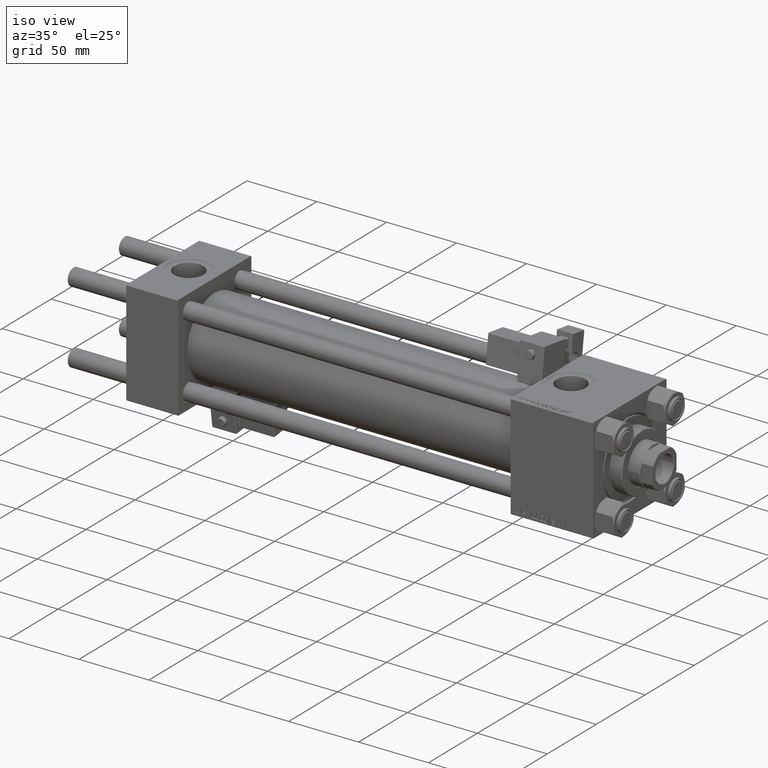
[diagram: clean part render]
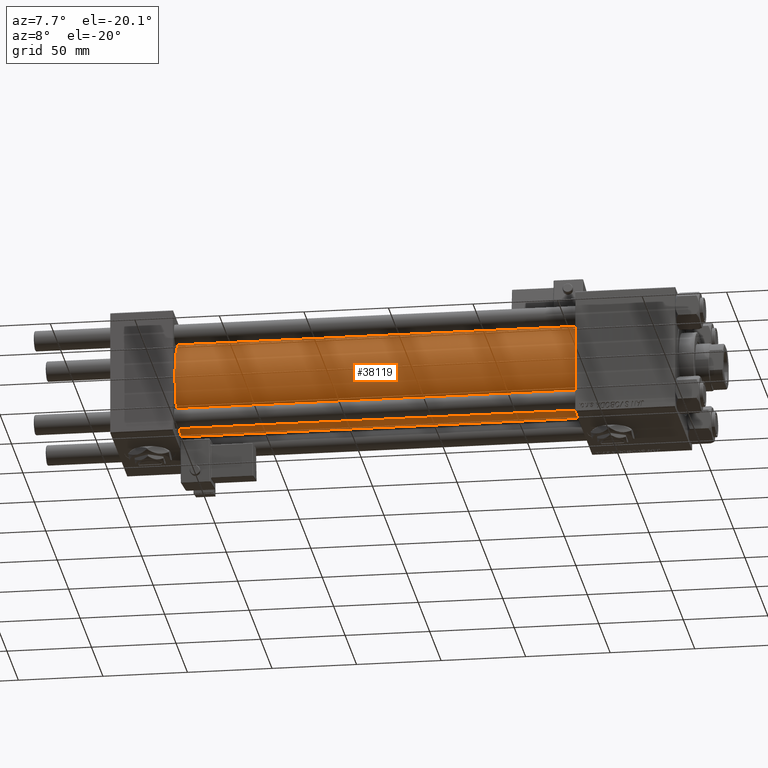
[diagram: tour spotlight — one face highlighted and labeled with its STEP entity id]
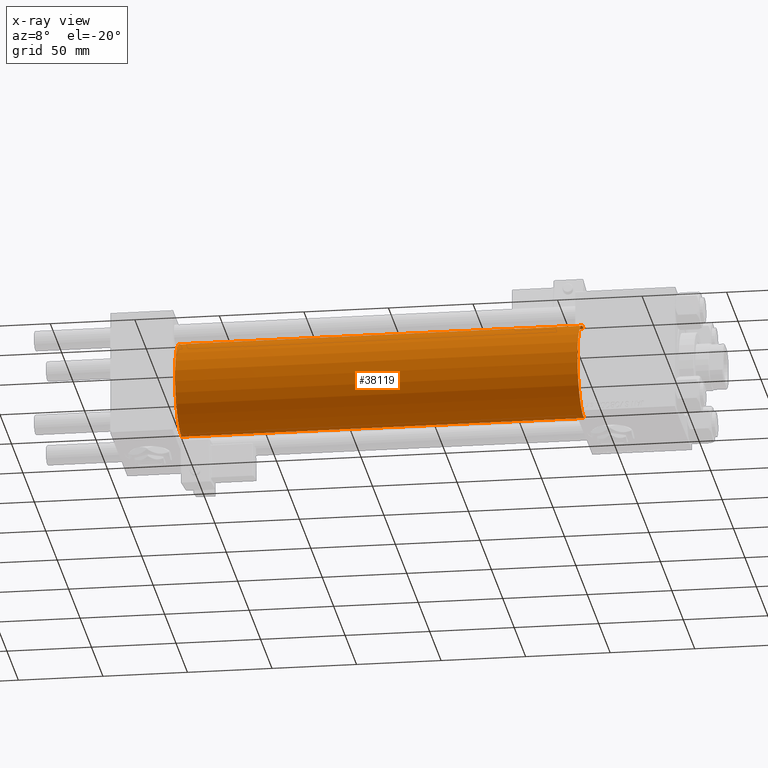
[diagram: x-ray of the same camera — body ghosted, this tour face saturated]
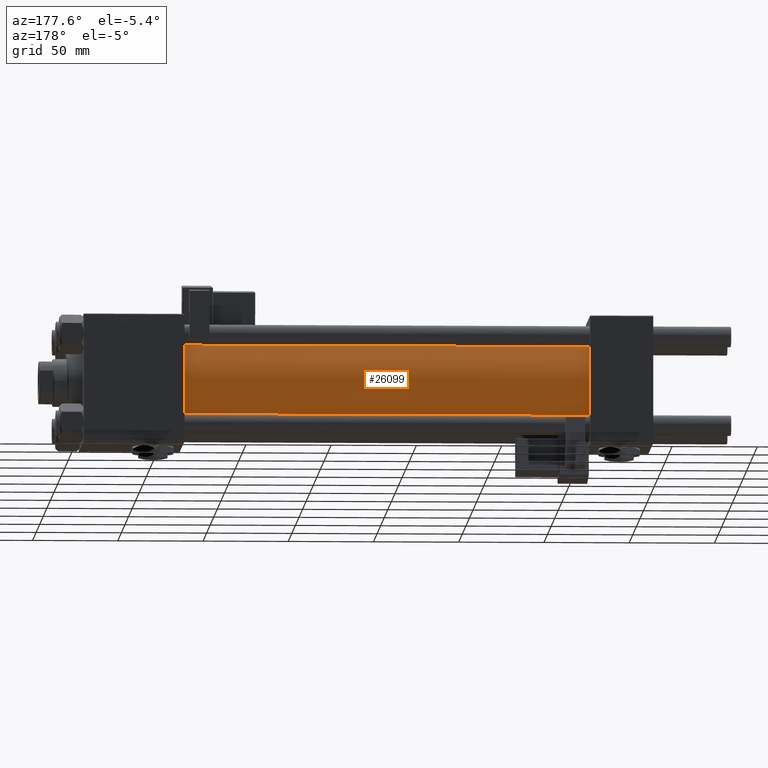
[diagram: tour spotlight — one face highlighted and labeled with its STEP entity id]
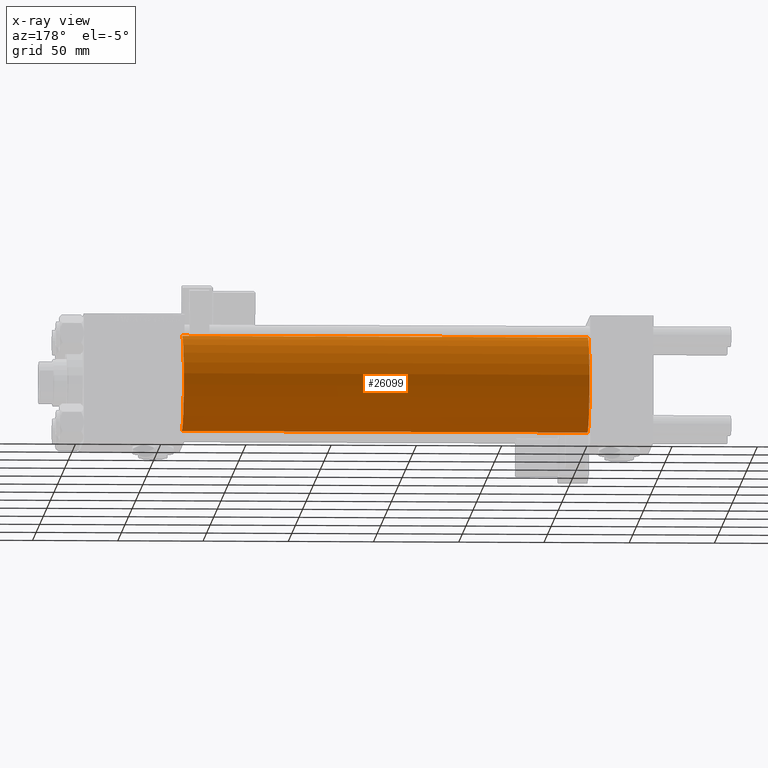
[diagram: x-ray of the same camera — body ghosted, this tour face saturated]
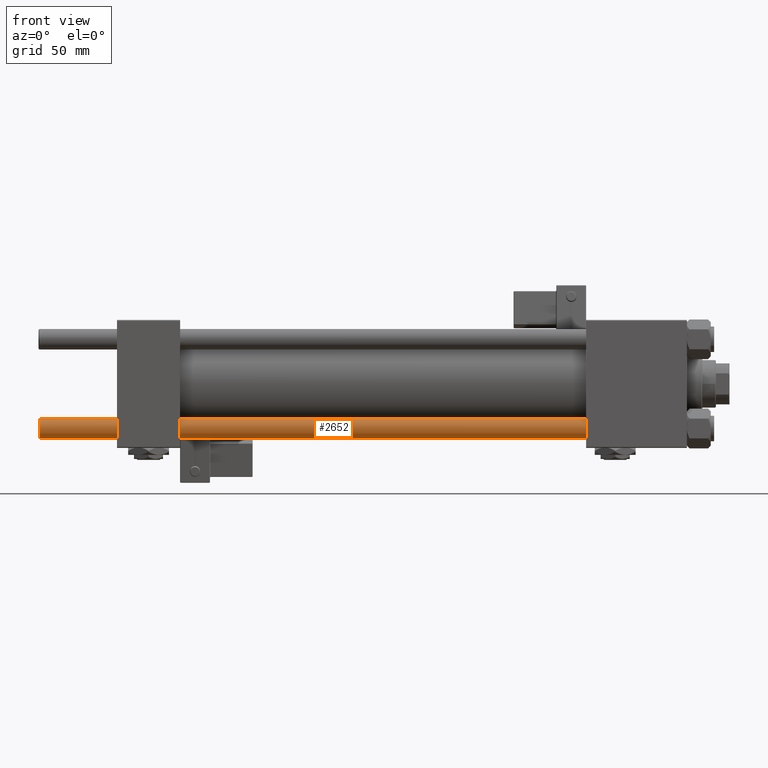
[diagram: tour spotlight — one face highlighted and labeled with its STEP entity id]
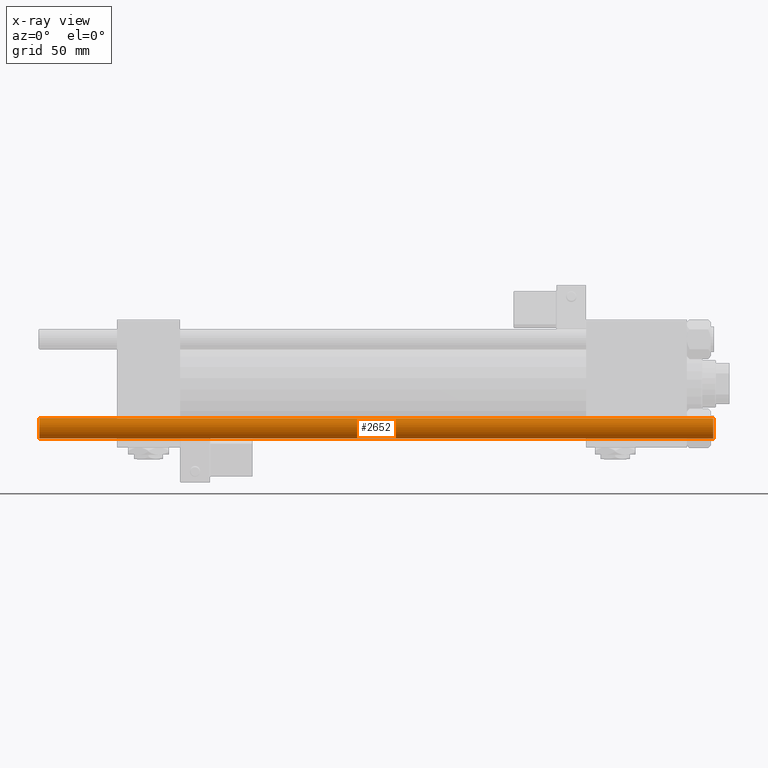
[diagram: x-ray of the same camera — body ghosted, this tour face saturated]
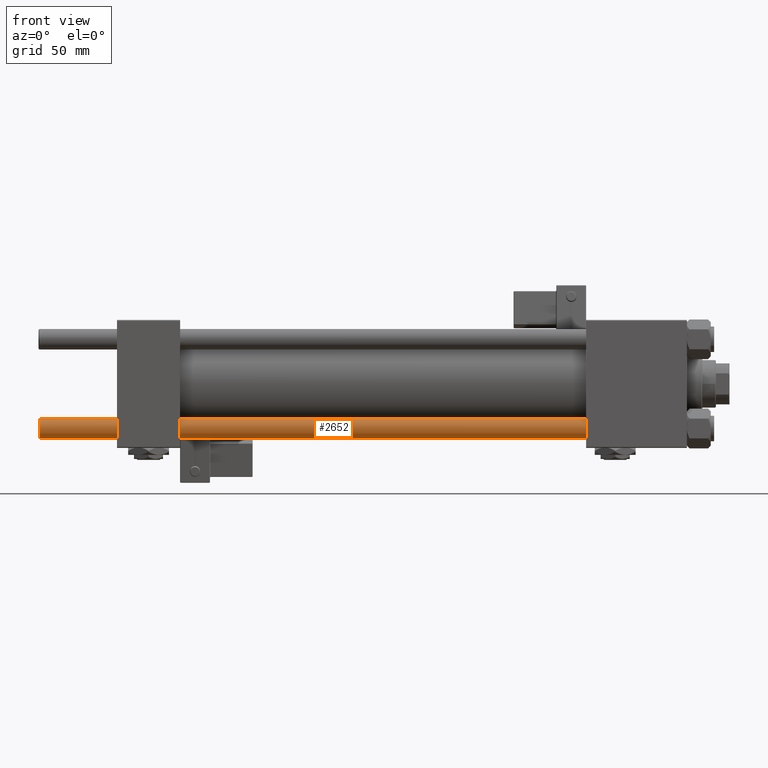
[diagram: tour spotlight — one face highlighted and labeled with its STEP entity id]
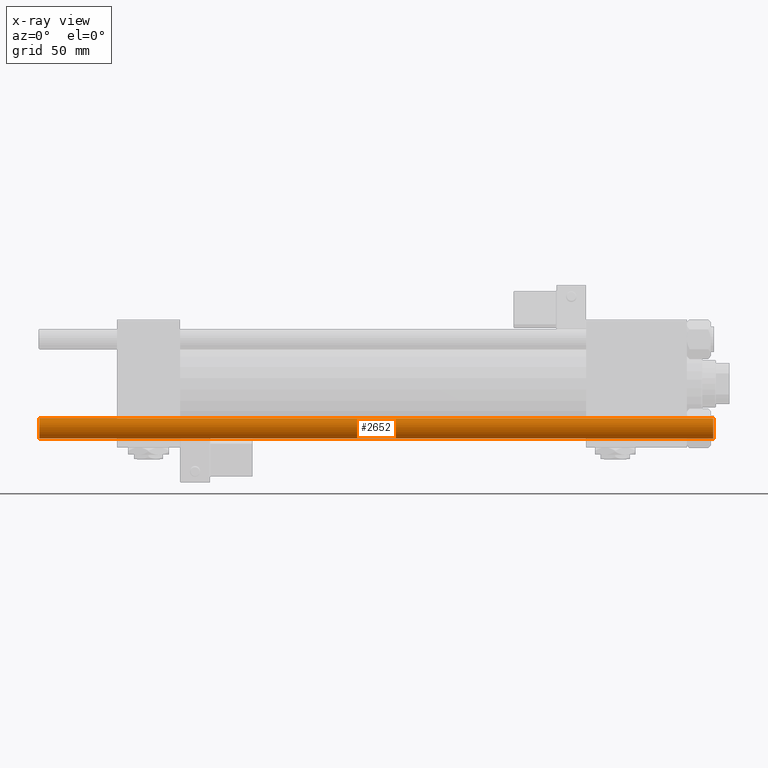
[diagram: x-ray of the same camera — body ghosted, this tour face saturated]
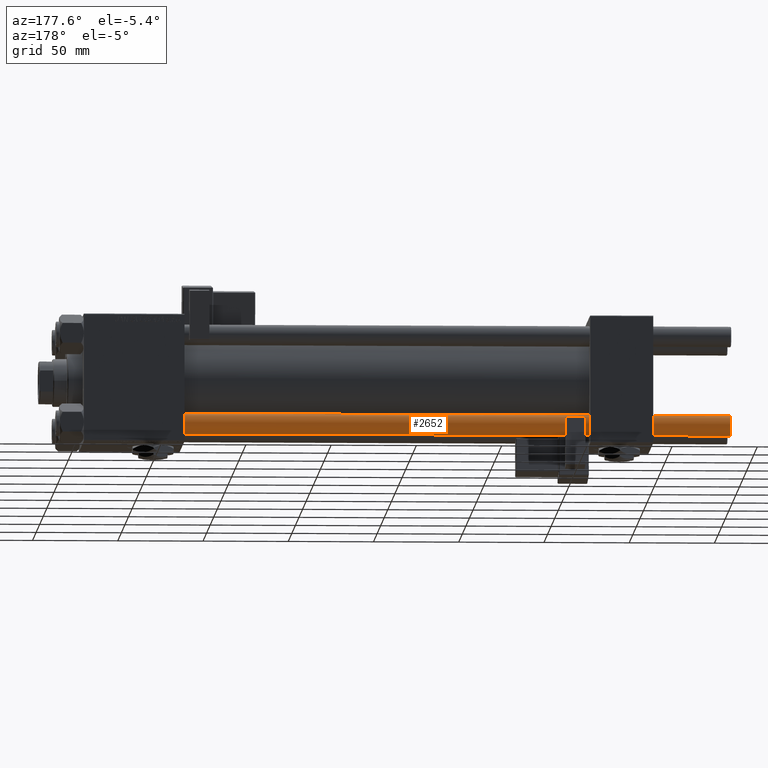
[diagram: tour spotlight — one face highlighted and labeled with its STEP entity id]
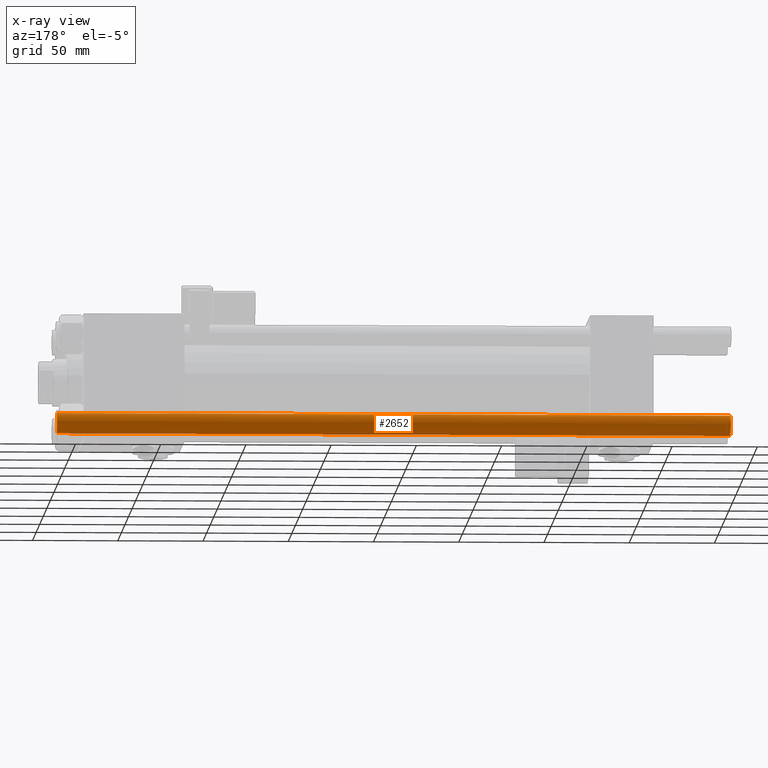
[diagram: x-ray of the same camera — body ghosted, this tour face saturated]
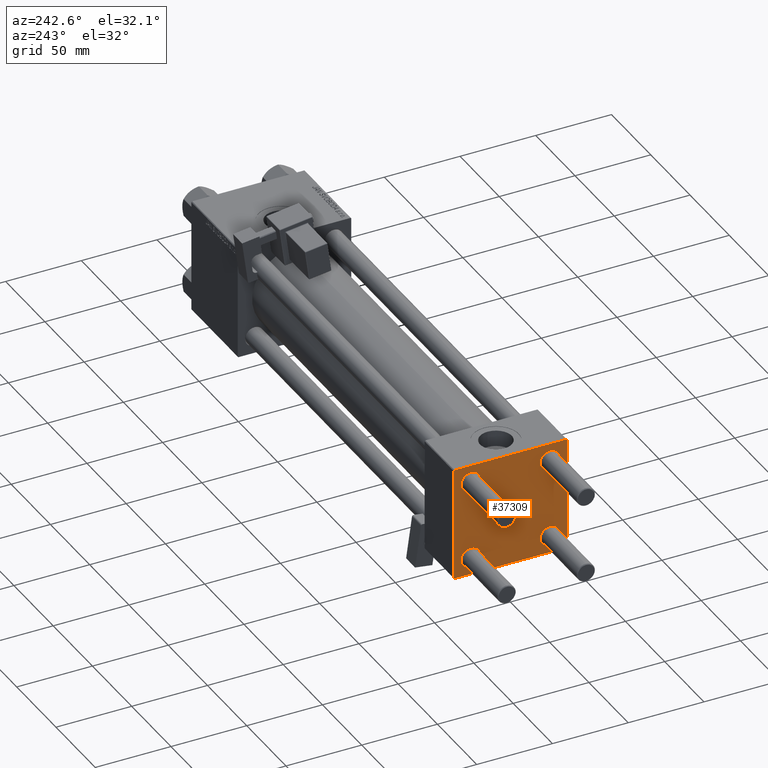
[diagram: tour spotlight — one face highlighted and labeled with its STEP entity id]
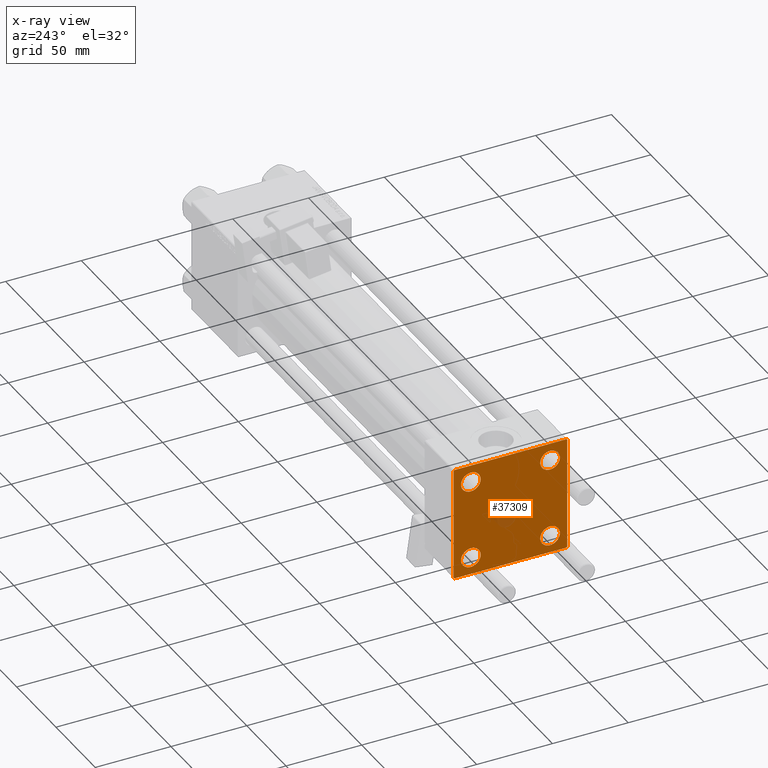
[diagram: x-ray of the same camera — body ghosted, this tour face saturated]
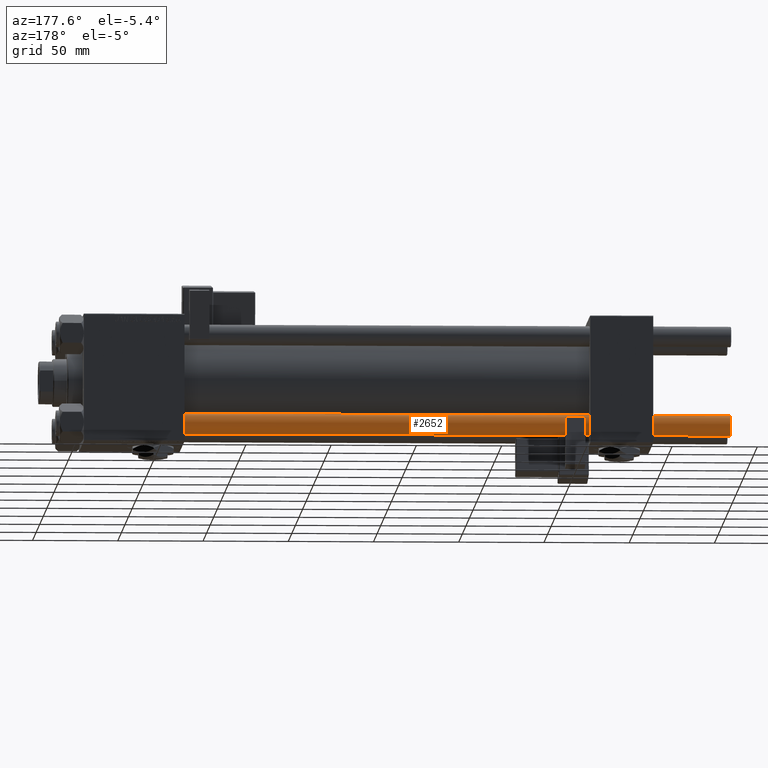
[diagram: tour spotlight — one face highlighted and labeled with its STEP entity id]
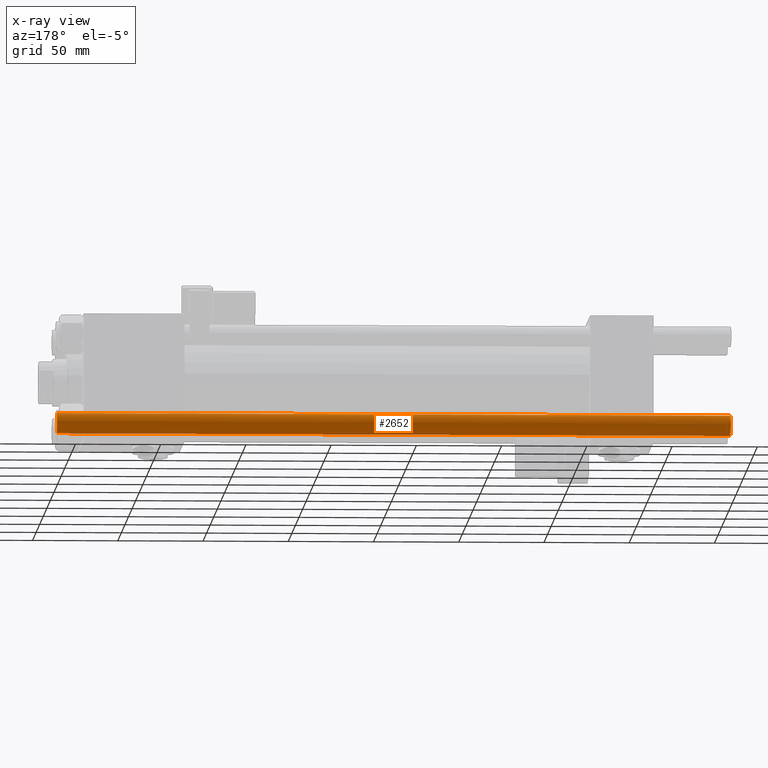
[diagram: x-ray of the same camera — body ghosted, this tour face saturated]
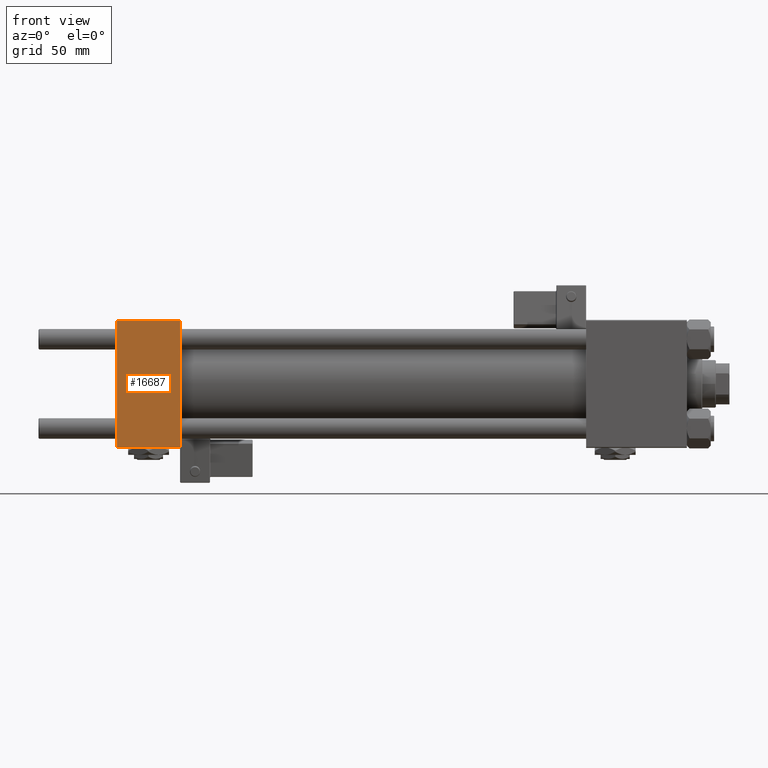
[diagram: tour spotlight — one face highlighted and labeled with its STEP entity id]
A machine part: a face-by-face anatomy tour. The part has 1387 B-rep faces; the first image is the clean iso view, then the 8 largest visible faces are spotlighted one at a time (largest first), each with its STEP entity span.

Face 1 — auxiliary view, entity #38119. An x-ray twin of the same camera follows (body ghosted, this face saturated) — the face is partly hidden behind the body. In plain terms, the highlighted cylindrical surface (partial cylindrical patch) has radius 28 mm, axis along (-1, -0, -0).
Definition (entity closure, byte-faithful):
#3312 = EDGE_CURVE ( 'NONE', #7573, #44421, #30639, .T. ) ;
#4209 = DIRECTION ( 'NONE',  ( 1.000000000000000000, -0.000000000000000000, 0.000000000000000000 ) ) ;
#5053 = DIRECTION ( 'NONE',  ( -1.000000000000000000, -0.000000000000000000, -0.000000000000000000 ) ) ;
#5757 = ORIENTED_EDGE ( 'NONE', *, *, #35624, .F. ) ;
#6972 = CYLINDRICAL_SURFACE ( 'NONE', #18963, 28.00000000000000000 ) ;
#7573 = VERTEX_POINT ( 'NONE', #10326 ) ;
#10326 = CARTESIAN_POINT ( 'NONE',  ( 274.9999999999999432, 0.000000000000000000, 28.00000000000000000 ) ) ;
#12146 = AXIS2_PLACEMENT_3D ( 'NONE', #41049, #49238, #24124 ) ;
#13717 = DIRECTION ( 'NONE',  ( -1.000000000000000000, -0.000000000000000000, -0.000000000000000000 ) ) ;
#16143 = VERTEX_POINT ( 'NONE', #43437 ) ;
#17894 = CIRCLE ( 'NONE', #46654, 28.00000000000000000 ) ;
#18007 = VERTEX_POINT ( 'NONE', #26898 ) ;
#18251 = ORIENTED_EDGE ( 'NONE', *, *, #3312, .T. ) ;
#18834 = ORIENTED_EDGE ( 'NONE', *, *, #42823, .F. ) ;
#18963 = AXIS2_PLACEMENT_3D ( 'NONE', #48715, #40253, #49507 ) ;
#19379 = CARTESIAN_POINT ( 'NONE',  ( 274.9999999999999432, 0.000000000000000000, 28.00000000000000000 ) ) ;
#21900 = EDGE_CURVE ( 'NONE', #44421, #18007, #17894, .T. ) ;
#24124 = DIRECTION ( 'NONE',  ( 0.000000000000000000, 0.000000000000000000, -1.000000000000000000 ) ) ;
#25159 = VECTOR ( 'NONE', #13717, 1000.000000000000000 ) ;
#26898 = CARTESIAN_POINT ( 'NONE',  ( 37.00000000000000711, 3.429011037612589276E-15, -28.00000000000000000 ) ) ;
#30458 = VECTOR ( 'NONE', #5053, 1000.000000000000000 ) ;
#30639 = LINE ( 'NONE', #19379, #25159 ) ;
#34918 = ORIENTED_EDGE ( 'NONE', *, *, #21900, .T. ) ;
#35624 = EDGE_CURVE ( 'NONE', #16143, #18007, #46803, .T. ) ;
#36957 = FACE_OUTER_BOUND ( 'NONE', #46791, .T. ) ;
#38119 = ADVANCED_FACE ( 'NONE', ( #36957 ), #6972, .T. ) ;
#40253 = DIRECTION ( 'NONE',  ( -1.000000000000000000, -0.000000000000000000, -0.000000000000000000 ) ) ;
#41049 = CARTESIAN_POINT ( 'NONE',  ( 274.9999999999999432, 0.000000000000000000, 0.000000000000000000 ) ) ;
#41587 = CARTESIAN_POINT ( 'NONE',  ( 37.00000000000000711, 0.000000000000000000, 0.000000000000000000 ) ) ;
#42812 = CARTESIAN_POINT ( 'NONE',  ( 37.00000000000000711, 0.000000000000000000, 28.00000000000000000 ) ) ;
#42823 = EDGE_CURVE ( 'NONE', #7573, #16143, #52237, .T. ) ;
#43437 = CARTESIAN_POINT ( 'NONE',  ( 274.9999999999999432, 3.429011037612589276E-15, -28.00000000000000000 ) ) ;
#44421 = VERTEX_POINT ( 'NONE', #42812 ) ;
#46654 = AXIS2_PLACEMENT_3D ( 'NONE', #41587, #4209, #50050 ) ;
#46791 = EDGE_LOOP ( 'NONE', ( #5757, #18834, #18251, #34918 ) ) ;
#46803 = LINE ( 'NONE', #50093, #30458 ) ;
#48715 = CARTESIAN_POINT ( 'NONE',  ( 274.9999999999999432, 0.000000000000000000, 0.000000000000000000 ) ) ;
#49238 = DIRECTION ( 'NONE',  ( 1.000000000000000000, 0.000000000000000000, 0.000000000000000000 ) ) ;
#49507 = DIRECTION ( 'NONE',  ( 0.000000000000000000, 0.000000000000000000, 1.000000000000000000 ) ) ;
#50050 = DIRECTION ( 'NONE',  ( 0.000000000000000000, 0.000000000000000000, 1.000000000000000000 ) ) ;
#50093 = CARTESIAN_POINT ( 'NONE',  ( 274.9999999999999432, 3.429011037612589276E-15, -28.00000000000000000 ) ) ;
#52237 = CIRCLE ( 'NONE', #12146, 28.00000000000000000 ) ;

Face 2 — auxiliary view, entity #26099. An x-ray twin of the same camera follows (body ghosted, this face saturated) — the face is partly hidden behind the body. In plain terms, the highlighted cylindrical surface (partial cylindrical patch) has radius 28 mm, axis along (-1, -0, -0).
Definition (entity closure, byte-faithful):
#817 = DIRECTION ( 'NONE',  ( 1.000000000000000000, 0.000000000000000000, 0.000000000000000000 ) ) ;
#1155 = CIRCLE ( 'NONE', #11636, 28.00000000000000000 ) ;
#1211 = ORIENTED_EDGE ( 'NONE', *, *, #16386, .F. ) ;
#2516 = CARTESIAN_POINT ( 'NONE',  ( 274.9999999999999432, 0.000000000000000000, 0.000000000000000000 ) ) ;
#3312 = EDGE_CURVE ( 'NONE', #7573, #44421, #30639, .T. ) ;
#3375 = DIRECTION ( 'NONE',  ( 0.000000000000000000, 0.000000000000000000, 1.000000000000000000 ) ) ;
#5053 = DIRECTION ( 'NONE',  ( -1.000000000000000000, -0.000000000000000000, -0.000000000000000000 ) ) ;
#5638 = CIRCLE ( 'NONE', #36990, 28.00000000000000000 ) ;
#7573 = VERTEX_POINT ( 'NONE', #10326 ) ;
#10326 = CARTESIAN_POINT ( 'NONE',  ( 274.9999999999999432, 0.000000000000000000, 28.00000000000000000 ) ) ;
#11636 = AXIS2_PLACEMENT_3D ( 'NONE', #44322, #48686, #3375 ) ;
#13185 = EDGE_CURVE ( 'NONE', #18007, #44421, #1155, .T. ) ;
#13717 = DIRECTION ( 'NONE',  ( -1.000000000000000000, -0.000000000000000000, -0.000000000000000000 ) ) ;
#14512 = ORIENTED_EDGE ( 'NONE', *, *, #13185, .T. ) ;
#15130 = ORIENTED_EDGE ( 'NONE', *, *, #3312, .F. ) ;
#15605 = DIRECTION ( 'NONE',  ( 0.000000000000000000, 0.000000000000000000, 1.000000000000000000 ) ) ;
#16143 = VERTEX_POINT ( 'NONE', #43437 ) ;
#16386 = EDGE_CURVE ( 'NONE', #16143, #7573, #5638, .T. ) ;
#18007 = VERTEX_POINT ( 'NONE', #26898 ) ;
#19379 = CARTESIAN_POINT ( 'NONE',  ( 274.9999999999999432, 0.000000000000000000, 28.00000000000000000 ) ) ;
#25159 = VECTOR ( 'NONE', #13717, 1000.000000000000000 ) ;
#26099 = ADVANCED_FACE ( 'NONE', ( #44266 ), #40434, .T. ) ;
#26898 = CARTESIAN_POINT ( 'NONE',  ( 37.00000000000000711, 3.429011037612589276E-15, -28.00000000000000000 ) ) ;
#28409 = DIRECTION ( 'NONE',  ( -1.000000000000000000, -0.000000000000000000, -0.000000000000000000 ) ) ;
#30458 = VECTOR ( 'NONE', #5053, 1000.000000000000000 ) ;
#30639 = LINE ( 'NONE', #19379, #25159 ) ;
#33297 = DIRECTION ( 'NONE',  ( 0.000000000000000000, 0.000000000000000000, -1.000000000000000000 ) ) ;
#35624 = EDGE_CURVE ( 'NONE', #16143, #18007, #46803, .T. ) ;
#36990 = AXIS2_PLACEMENT_3D ( 'NONE', #46399, #817, #33297 ) ;
#40434 = CYLINDRICAL_SURFACE ( 'NONE', #45950, 28.00000000000000000 ) ;
#40704 = ORIENTED_EDGE ( 'NONE', *, *, #35624, .T. ) ;
#42812 = CARTESIAN_POINT ( 'NONE',  ( 37.00000000000000711, 0.000000000000000000, 28.00000000000000000 ) ) ;
#43437 = CARTESIAN_POINT ( 'NONE',  ( 274.9999999999999432, 3.429011037612589276E-15, -28.00000000000000000 ) ) ;
#44266 = FACE_OUTER_BOUND ( 'NONE', #48033, .T. ) ;
#44322 = CARTESIAN_POINT ( 'NONE',  ( 37.00000000000000711, 0.000000000000000000, 0.000000000000000000 ) ) ;
#44421 = VERTEX_POINT ( 'NONE', #42812 ) ;
#45950 = AXIS2_PLACEMENT_3D ( 'NONE', #2516, #28409, #15605 ) ;
#46399 = CARTESIAN_POINT ( 'NONE',  ( 274.9999999999999432, 0.000000000000000000, 0.000000000000000000 ) ) ;
#46803 = LINE ( 'NONE', #50093, #30458 ) ;
#48033 = EDGE_LOOP ( 'NONE', ( #1211, #40704, #14512, #15130 ) ) ;
#48686 = DIRECTION ( 'NONE',  ( 1.000000000000000000, -0.000000000000000000, 0.000000000000000000 ) ) ;
#50093 = CARTESIAN_POINT ( 'NONE',  ( 274.9999999999999432, 3.429011037612589276E-15, -28.00000000000000000 ) ) ;

Face 3 — front view, entity #2652. An x-ray twin of the same camera follows (body ghosted, this face saturated) — the face is partly hidden behind the body. In plain terms, the highlighted cylindrical surface (edge-blend (fillet) strip) has radius 6 mm, axis along (1, -0, 0).
Definition (entity closure, byte-faithful):
#973 = DIRECTION ( 'NONE',  ( -0.000000000000000000, -0.000000000000000000, -1.000000000000000000 ) ) ;
#2652 = ADVANCED_FACE ( 'NONE', ( #20102 ), #16009, .T. ) ;
#2766 = EDGE_CURVE ( 'NONE', #43515, #14283, #17342, .T. ) ;
#3617 = CARTESIAN_POINT ( 'NONE',  ( 0.000000000000000000, 0.000000000000000000, 0.5000000000001114664 ) ) ;
#4401 = AXIS2_PLACEMENT_3D ( 'NONE', #46739, #24918, #12643 ) ;
#4823 = EDGE_LOOP ( 'NONE', ( #44488, #48795, #37979, #49357 ) ) ;
#8742 = CARTESIAN_POINT ( 'NONE',  ( 6.000000000000000888, 7.347880794884120722E-16, 395.5000000000000568 ) ) ;
#11187 = AXIS2_PLACEMENT_3D ( 'NONE', #49835, #37008, #49039 ) ;
#11971 = VERTEX_POINT ( 'NONE', #44887 ) ;
#12643 = DIRECTION ( 'NONE',  ( 1.000000000000000000, 0.000000000000000000, 0.000000000000000000 ) ) ;
#13555 = EDGE_CURVE ( 'NONE', #16394, #11971, #42905, .T. ) ;
#14283 = VERTEX_POINT ( 'NONE', #21629 ) ;
#16009 = CYLINDRICAL_SURFACE ( 'NONE', #11187, 6.000000000000000888 ) ;
#16394 = VERTEX_POINT ( 'NONE', #8742 ) ;
#17342 = LINE ( 'NONE', #30148, #29485 ) ;
#18353 = CARTESIAN_POINT ( 'NONE',  ( 6.000000000000000888, 7.347880794884120722E-16, 396.0000000000000000 ) ) ;
#20102 = FACE_OUTER_BOUND ( 'NONE', #4823, .T. ) ;
#21629 = CARTESIAN_POINT ( 'NONE',  ( -6.000000000000000888, 0.000000000000000000, 0.5000000000001114664 ) ) ;
#24918 = DIRECTION ( 'NONE',  ( 0.000000000000000000, 0.000000000000000000, -1.000000000000000000 ) ) ;
#27916 = CIRCLE ( 'NONE', #4401, 6.000000000000000888 ) ;
#29485 = VECTOR ( 'NONE', #973, 1000.000000000000000 ) ;
#30148 = CARTESIAN_POINT ( 'NONE',  ( -6.000000000000000888, 0.000000000000000000, 396.0000000000000000 ) ) ;
#30800 = VECTOR ( 'NONE', #34992, 1000.000000000000000 ) ;
#34992 = DIRECTION ( 'NONE',  ( -0.000000000000000000, -0.000000000000000000, -1.000000000000000000 ) ) ;
#37008 = DIRECTION ( 'NONE',  ( -0.000000000000000000, -0.000000000000000000, -1.000000000000000000 ) ) ;
#37163 = DIRECTION ( 'NONE',  ( -0.000000000000000000, -0.000000000000000000, 1.000000000000000000 ) ) ;
#37979 = ORIENTED_EDGE ( 'NONE', *, *, #52931, .T. ) ;
#38540 = AXIS2_PLACEMENT_3D ( 'NONE', #3617, #37163, #53297 ) ;
#42056 = CIRCLE ( 'NONE', #38540, 6.000000000000000888 ) ;
#42905 = LINE ( 'NONE', #18353, #30800 ) ;
#43515 = VERTEX_POINT ( 'NONE', #53082 ) ;
#44488 = ORIENTED_EDGE ( 'NONE', *, *, #47617, .T. ) ;
#44887 = CARTESIAN_POINT ( 'NONE',  ( 6.000000000000000888, 7.347880794884120722E-16, 0.5000000000001114664 ) ) ;
#46739 = CARTESIAN_POINT ( 'NONE',  ( 0.000000000000000000, 0.000000000000000000, 395.5000000000000568 ) ) ;
#47617 = EDGE_CURVE ( 'NONE', #43515, #16394, #27916, .T. ) ;
#48795 = ORIENTED_EDGE ( 'NONE', *, *, #13555, .T. ) ;
#49039 = DIRECTION ( 'NONE',  ( -1.000000000000000000, 0.000000000000000000, 0.000000000000000000 ) ) ;
#49357 = ORIENTED_EDGE ( 'NONE', *, *, #2766, .F. ) ;
#49835 = CARTESIAN_POINT ( 'NONE',  ( 0.000000000000000000, 0.000000000000000000, 396.0000000000000000 ) ) ;
#52931 = EDGE_CURVE ( 'NONE', #11971, #14283, #42056, .T. ) ;
#53082 = CARTESIAN_POINT ( 'NONE',  ( -6.000000000000000888, 0.000000000000000000, 395.5000000000000568 ) ) ;
#53297 = DIRECTION ( 'NONE',  ( 1.000000000000000000, 0.000000000000000000, 0.000000000000000000 ) ) ;

Face 4 — front view, entity #2652. An x-ray twin of the same camera follows (body ghosted, this face saturated) — the face is partly hidden behind the body. In plain terms, the highlighted cylindrical surface (edge-blend (fillet) strip) has radius 6 mm, axis along (-1, 0, 0).
Definition (entity closure, byte-faithful):
#973 = DIRECTION ( 'NONE',  ( -0.000000000000000000, -0.000000000000000000, -1.000000000000000000 ) ) ;
#2652 = ADVANCED_FACE ( 'NONE', ( #20102 ), #16009, .T. ) ;
#2766 = EDGE_CURVE ( 'NONE', #43515, #14283, #17342, .T. ) ;
#3617 = CARTESIAN_POINT ( 'NONE',  ( 0.000000000000000000, 0.000000000000000000, 0.5000000000001114664 ) ) ;
#4401 = AXIS2_PLACEMENT_3D ( 'NONE', #46739, #24918, #12643 ) ;
#4823 = EDGE_LOOP ( 'NONE', ( #44488, #48795, #37979, #49357 ) ) ;
#8742 = CARTESIAN_POINT ( 'NONE',  ( 6.000000000000000888, 7.347880794884120722E-16, 395.5000000000000568 ) ) ;
#11187 = AXIS2_PLACEMENT_3D ( 'NONE', #49835, #37008, #49039 ) ;
#11971 = VERTEX_POINT ( 'NONE', #44887 ) ;
#12643 = DIRECTION ( 'NONE',  ( 1.000000000000000000, 0.000000000000000000, 0.000000000000000000 ) ) ;
#13555 = EDGE_CURVE ( 'NONE', #16394, #11971, #42905, .T. ) ;
#14283 = VERTEX_POINT ( 'NONE', #21629 ) ;
#16009 = CYLINDRICAL_SURFACE ( 'NONE', #11187, 6.000000000000000888 ) ;
#16394 = VERTEX_POINT ( 'NONE', #8742 ) ;
#17342 = LINE ( 'NONE', #30148, #29485 ) ;
#18353 = CARTESIAN_POINT ( 'NONE',  ( 6.000000000000000888, 7.347880794884120722E-16, 396.0000000000000000 ) ) ;
#20102 = FACE_OUTER_BOUND ( 'NONE', #4823, .T. ) ;
#21629 = CARTESIAN_POINT ( 'NONE',  ( -6.000000000000000888, 0.000000000000000000, 0.5000000000001114664 ) ) ;
#24918 = DIRECTION ( 'NONE',  ( 0.000000000000000000, 0.000000000000000000, -1.000000000000000000 ) ) ;
#27916 = CIRCLE ( 'NONE', #4401, 6.000000000000000888 ) ;
#29485 = VECTOR ( 'NONE', #973, 1000.000000000000000 ) ;
#30148 = CARTESIAN_POINT ( 'NONE',  ( -6.000000000000000888, 0.000000000000000000, 396.0000000000000000 ) ) ;
#30800 = VECTOR ( 'NONE', #34992, 1000.000000000000000 ) ;
#34992 = DIRECTION ( 'NONE',  ( -0.000000000000000000, -0.000000000000000000, -1.000000000000000000 ) ) ;
#37008 = DIRECTION ( 'NONE',  ( -0.000000000000000000, -0.000000000000000000, -1.000000000000000000 ) ) ;
#37163 = DIRECTION ( 'NONE',  ( -0.000000000000000000, -0.000000000000000000, 1.000000000000000000 ) ) ;
#37979 = ORIENTED_EDGE ( 'NONE', *, *, #52931, .T. ) ;
#38540 = AXIS2_PLACEMENT_3D ( 'NONE', #3617, #37163, #53297 ) ;
#42056 = CIRCLE ( 'NONE', #38540, 6.000000000000000888 ) ;
#42905 = LINE ( 'NONE', #18353, #30800 ) ;
#43515 = VERTEX_POINT ( 'NONE', #53082 ) ;
#44488 = ORIENTED_EDGE ( 'NONE', *, *, #47617, .T. ) ;
#44887 = CARTESIAN_POINT ( 'NONE',  ( 6.000000000000000888, 7.347880794884120722E-16, 0.5000000000001114664 ) ) ;
#46739 = CARTESIAN_POINT ( 'NONE',  ( 0.000000000000000000, 0.000000000000000000, 395.5000000000000568 ) ) ;
#47617 = EDGE_CURVE ( 'NONE', #43515, #16394, #27916, .T. ) ;
#48795 = ORIENTED_EDGE ( 'NONE', *, *, #13555, .T. ) ;
#49039 = DIRECTION ( 'NONE',  ( -1.000000000000000000, 0.000000000000000000, 0.000000000000000000 ) ) ;
#49357 = ORIENTED_EDGE ( 'NONE', *, *, #2766, .F. ) ;
#49835 = CARTESIAN_POINT ( 'NONE',  ( 0.000000000000000000, 0.000000000000000000, 396.0000000000000000 ) ) ;
#52931 = EDGE_CURVE ( 'NONE', #11971, #14283, #42056, .T. ) ;
#53082 = CARTESIAN_POINT ( 'NONE',  ( -6.000000000000000888, 0.000000000000000000, 395.5000000000000568 ) ) ;
#53297 = DIRECTION ( 'NONE',  ( 1.000000000000000000, 0.000000000000000000, 0.000000000000000000 ) ) ;

Face 5 — auxiliary view, entity #2652. An x-ray twin of the same camera follows (body ghosted, this face saturated) — the face is partly hidden behind the body. In plain terms, the highlighted cylindrical surface (edge-blend (fillet) strip) has radius 6 mm, axis along (-1, -0, -0).
Definition (entity closure, byte-faithful):
#973 = DIRECTION ( 'NONE',  ( -0.000000000000000000, -0.000000000000000000, -1.000000000000000000 ) ) ;
#2652 = ADVANCED_FACE ( 'NONE', ( #20102 ), #16009, .T. ) ;
#2766 = EDGE_CURVE ( 'NONE', #43515, #14283, #17342, .T. ) ;
#3617 = CARTESIAN_POINT ( 'NONE',  ( 0.000000000000000000, 0.000000000000000000, 0.5000000000001114664 ) ) ;
#4401 = AXIS2_PLACEMENT_3D ( 'NONE', #46739, #24918, #12643 ) ;
#4823 = EDGE_LOOP ( 'NONE', ( #44488, #48795, #37979, #49357 ) ) ;
#8742 = CARTESIAN_POINT ( 'NONE',  ( 6.000000000000000888, 7.347880794884120722E-16, 395.5000000000000568 ) ) ;
#11187 = AXIS2_PLACEMENT_3D ( 'NONE', #49835, #37008, #49039 ) ;
#11971 = VERTEX_POINT ( 'NONE', #44887 ) ;
#12643 = DIRECTION ( 'NONE',  ( 1.000000000000000000, 0.000000000000000000, 0.000000000000000000 ) ) ;
#13555 = EDGE_CURVE ( 'NONE', #16394, #11971, #42905, .T. ) ;
#14283 = VERTEX_POINT ( 'NONE', #21629 ) ;
#16009 = CYLINDRICAL_SURFACE ( 'NONE', #11187, 6.000000000000000888 ) ;
#16394 = VERTEX_POINT ( 'NONE', #8742 ) ;
#17342 = LINE ( 'NONE', #30148, #29485 ) ;
#18353 = CARTESIAN_POINT ( 'NONE',  ( 6.000000000000000888, 7.347880794884120722E-16, 396.0000000000000000 ) ) ;
#20102 = FACE_OUTER_BOUND ( 'NONE', #4823, .T. ) ;
#21629 = CARTESIAN_POINT ( 'NONE',  ( -6.000000000000000888, 0.000000000000000000, 0.5000000000001114664 ) ) ;
#24918 = DIRECTION ( 'NONE',  ( 0.000000000000000000, 0.000000000000000000, -1.000000000000000000 ) ) ;
#27916 = CIRCLE ( 'NONE', #4401, 6.000000000000000888 ) ;
#29485 = VECTOR ( 'NONE', #973, 1000.000000000000000 ) ;
#30148 = CARTESIAN_POINT ( 'NONE',  ( -6.000000000000000888, 0.000000000000000000, 396.0000000000000000 ) ) ;
#30800 = VECTOR ( 'NONE', #34992, 1000.000000000000000 ) ;
#34992 = DIRECTION ( 'NONE',  ( -0.000000000000000000, -0.000000000000000000, -1.000000000000000000 ) ) ;
#37008 = DIRECTION ( 'NONE',  ( -0.000000000000000000, -0.000000000000000000, -1.000000000000000000 ) ) ;
#37163 = DIRECTION ( 'NONE',  ( -0.000000000000000000, -0.000000000000000000, 1.000000000000000000 ) ) ;
#37979 = ORIENTED_EDGE ( 'NONE', *, *, #52931, .T. ) ;
#38540 = AXIS2_PLACEMENT_3D ( 'NONE', #3617, #37163, #53297 ) ;
#42056 = CIRCLE ( 'NONE', #38540, 6.000000000000000888 ) ;
#42905 = LINE ( 'NONE', #18353, #30800 ) ;
#43515 = VERTEX_POINT ( 'NONE', #53082 ) ;
#44488 = ORIENTED_EDGE ( 'NONE', *, *, #47617, .T. ) ;
#44887 = CARTESIAN_POINT ( 'NONE',  ( 6.000000000000000888, 7.347880794884120722E-16, 0.5000000000001114664 ) ) ;
#46739 = CARTESIAN_POINT ( 'NONE',  ( 0.000000000000000000, 0.000000000000000000, 395.5000000000000568 ) ) ;
#47617 = EDGE_CURVE ( 'NONE', #43515, #16394, #27916, .T. ) ;
#48795 = ORIENTED_EDGE ( 'NONE', *, *, #13555, .T. ) ;
#49039 = DIRECTION ( 'NONE',  ( -1.000000000000000000, 0.000000000000000000, 0.000000000000000000 ) ) ;
#49357 = ORIENTED_EDGE ( 'NONE', *, *, #2766, .F. ) ;
#49835 = CARTESIAN_POINT ( 'NONE',  ( 0.000000000000000000, 0.000000000000000000, 396.0000000000000000 ) ) ;
#52931 = EDGE_CURVE ( 'NONE', #11971, #14283, #42056, .T. ) ;
#53082 = CARTESIAN_POINT ( 'NONE',  ( -6.000000000000000888, 0.000000000000000000, 395.5000000000000568 ) ) ;
#53297 = DIRECTION ( 'NONE',  ( 1.000000000000000000, 0.000000000000000000, 0.000000000000000000 ) ) ;

Face 6 — auxiliary view, entity #37309. An x-ray twin of the same camera follows (body ghosted, this face saturated) — the face is partly hidden behind the body. In plain terms, the highlighted planar face has unit normal (-1, 0, 0).
Definition (entity closure, byte-faithful):
#675 = AXIS2_PLACEMENT_3D ( 'NONE', #11108, #32113, #52055 ) ;
#1284 = ORIENTED_EDGE ( 'NONE', *, *, #3921, .T. ) ;
#1578 = CARTESIAN_POINT ( 'NONE',  ( 0.000000000000000000, 26.14999999999999858, 19.64999999999998437 ) ) ;
#1746 = VECTOR ( 'NONE', #37673, 1000.000000000000114 ) ;
#1970 = ORIENTED_EDGE ( 'NONE', *, *, #41216, .T. ) ;
#2071 = DIRECTION ( 'NONE',  ( 0.000000000000000000, 0.000000000000000000, 1.000000000000000000 ) ) ;
#2398 = FACE_BOUND ( 'NONE', #6027, .T. ) ;
#2502 = CIRCLE ( 'NONE', #32997, 6.500000000000015987 ) ;
#2588 = EDGE_CURVE ( 'NONE', #36169, #28673, #25980, .T. ) ;
#2677 = DIRECTION ( 'NONE',  ( -1.000000000000000000, 0.000000000000000000, -0.000000000000000000 ) ) ;
#3633 = EDGE_CURVE ( 'NONE', #33813, #3863, #2502, .T. ) ;
#3863 = VERTEX_POINT ( 'NONE', #35887 ) ;
#3921 = EDGE_CURVE ( 'NONE', #3863, #33813, #51352, .T. ) ;
#4171 = VERTEX_POINT ( 'NONE', #16148 ) ;
#5310 = CARTESIAN_POINT ( 'NONE',  ( 0.000000000000000000, -26.14999999999999147, -26.15000000000000924 ) ) ;
#5516 = CARTESIAN_POINT ( 'NONE',  ( 0.000000000000000000, -26.14999999999999147, 32.65000000000003411 ) ) ;
#6027 = EDGE_LOOP ( 'NONE', ( #1284, #31938 ) ) ;
#6932 = ORIENTED_EDGE ( 'NONE', *, *, #17534, .T. ) ;
#7429 = ORIENTED_EDGE ( 'NONE', *, *, #22503, .T. ) ;
#8532 = CARTESIAN_POINT ( 'NONE',  ( 0.000000000000000000, -37.24999999999975842, -37.25000000000027001 ) ) ;
#8998 = CARTESIAN_POINT ( 'NONE',  ( 0.000000000000000000, 37.49999999999999289, -37.50000000000000000 ) ) ;
#9067 = VECTOR ( 'NONE', #32780, 1000.000000000000000 ) ;
#9197 = VERTEX_POINT ( 'NONE', #23286 ) ;
#9452 = CARTESIAN_POINT ( 'NONE',  ( 0.000000000000000000, 26.14999999999999858, 32.65000000000002700 ) ) ;
#11108 = CARTESIAN_POINT ( 'NONE',  ( 0.000000000000000000, -26.14999999999999147, -26.15000000000000924 ) ) ;
#11368 = DIRECTION ( 'NONE',  ( 0.000000000000000000, 0.000000000000000000, 1.000000000000000000 ) ) ;
#11886 = CARTESIAN_POINT ( 'NONE',  ( 0.000000000000000000, 37.49999999999999289, 37.00000000000000000 ) ) ;
#12148 = ORIENTED_EDGE ( 'NONE', *, *, #47124, .T. ) ;
#12540 = DIRECTION ( 'NONE',  ( 0.000000000000000000, 0.000000000000000000, -1.000000000000000000 ) ) ;
#12572 = AXIS2_PLACEMENT_3D ( 'NONE', #5310, #22485, #29595 ) ;
#12833 = CARTESIAN_POINT ( 'NONE',  ( 0.000000000000000000, 37.24999999999999289, 37.24999999999999289 ) ) ;
#12850 = CARTESIAN_POINT ( 'NONE',  ( 0.000000000000000000, -37.50000000000000711, 37.49999999999999289 ) ) ;
#12910 = DIRECTION ( 'NONE',  ( -0.000000000000000000, -0.7071067811865474617, -0.7071067811865474617 ) ) ;
#13022 = CARTESIAN_POINT ( 'NONE',  ( 0.000000000000000000, -26.14999999999999147, 26.15000000000000924 ) ) ;
#13078 = VECTOR ( 'NONE', #26321, 1000.000000000000000 ) ;
#13081 = ORIENTED_EDGE ( 'NONE', *, *, #45284, .T. ) ;
#13176 = CARTESIAN_POINT ( 'NONE',  ( 0.000000000000000000, 37.24999999999998579, -37.24999999999998579 ) ) ;
#13234 = LINE ( 'NONE', #45265, #13078 ) ;
#13338 = LINE ( 'NONE', #53759, #31415 ) ;
#14238 = EDGE_CURVE ( 'NONE', #46465, #48866, #50297, .T. ) ;
#14572 = EDGE_CURVE ( 'NONE', #9197, #4171, #17216, .T. ) ;
#14686 = AXIS2_PLACEMENT_3D ( 'NONE', #13022, #49880, #29670 ) ;
#15707 = EDGE_CURVE ( 'NONE', #22398, #53379, #50049, .T. ) ;
#16021 = DIRECTION ( 'NONE',  ( 0.000000000000000000, 0.000000000000000000, 1.000000000000000000 ) ) ;
#16148 = CARTESIAN_POINT ( 'NONE',  ( 0.000000000000000000, -37.50000000000000000, -37.00000000000003553 ) ) ;
#16492 = EDGE_LOOP ( 'NONE', ( #6932, #23025 ) ) ;
#16835 = CARTESIAN_POINT ( 'NONE',  ( 0.000000000000000000, 26.14999999999999858, -32.65000000000001990 ) ) ;
#17216 = LINE ( 'NONE', #12850, #9067 ) ;
#17534 = EDGE_CURVE ( 'NONE', #28673, #36169, #44911, .T. ) ;
#17697 = DIRECTION ( 'NONE',  ( 0.000000000000000000, 0.000000000000000000, 1.000000000000000000 ) ) ;
#18079 = ORIENTED_EDGE ( 'NONE', *, *, #14572, .F. ) ;
#18216 = CARTESIAN_POINT ( 'NONE',  ( 0.000000000000000000, 26.14999999999999858, 26.15000000000000213 ) ) ;
#19439 = EDGE_LOOP ( 'NONE', ( #38296, #44505 ) ) ;
#19815 = DIRECTION ( 'NONE',  ( 1.000000000000000000, -0.000000000000000000, 0.000000000000000000 ) ) ;
#20703 = CIRCLE ( 'NONE', #675, 6.500000000000015987 ) ;
#21296 = VERTEX_POINT ( 'NONE', #45554 ) ;
#22398 = VERTEX_POINT ( 'NONE', #41935 ) ;
#22485 = DIRECTION ( 'NONE',  ( 1.000000000000000000, -0.000000000000000000, 0.000000000000000000 ) ) ;
#22503 = EDGE_CURVE ( 'NONE', #9197, #50584, #38375, .T. ) ;
#23025 = ORIENTED_EDGE ( 'NONE', *, *, #2588, .T. ) ;
#23083 = CARTESIAN_POINT ( 'NONE',  ( 0.000000000000000000, -26.14999999999999147, -19.64999999999999503 ) ) ;
#23114 = DIRECTION ( 'NONE',  ( 1.000000000000000000, -0.000000000000000000, 0.000000000000000000 ) ) ;
#23286 = CARTESIAN_POINT ( 'NONE',  ( 0.000000000000000000, -37.50000000000000711, 36.99999999999999289 ) ) ;
#23416 = VERTEX_POINT ( 'NONE', #11886 ) ;
#23682 = PLANE ( 'NONE',  #48577 ) ;
#24037 = CARTESIAN_POINT ( 'NONE',  ( 0.000000000000000000, 36.99999999999997868, -37.50000000000000000 ) ) ;
#25980 = CIRCLE ( 'NONE', #48668, 6.500000000000023093 ) ;
#26321 = DIRECTION ( 'NONE',  ( 0.000000000000000000, -1.000000000000000000, -9.251858538542971581E-17 ) ) ;
#26431 = LINE ( 'NONE', #8998, #37535 ) ;
#26724 = EDGE_CURVE ( 'NONE', #53379, #22398, #20703, .T. ) ;
#27956 = ORIENTED_EDGE ( 'NONE', *, *, #26724, .T. ) ;
#28301 = DIRECTION ( 'NONE',  ( -0.000000000000000000, 0.000000000000000000, 1.000000000000000000 ) ) ;
#28495 = CIRCLE ( 'NONE', #49424, 6.500000000000023093 ) ;
#28673 = VERTEX_POINT ( 'NONE', #9452 ) ;
#29000 = LINE ( 'NONE', #8532, #31275 ) ;
#29595 = DIRECTION ( 'NONE',  ( 0.000000000000000000, 0.000000000000000000, 1.000000000000000000 ) ) ;
#29670 = DIRECTION ( 'NONE',  ( 0.000000000000000000, 0.000000000000000000, 1.000000000000000000 ) ) ;
#29986 = VERTEX_POINT ( 'NONE', #48502 ) ;
#31275 = VECTOR ( 'NONE', #38532, 1000.000000000000000 ) ;
#31305 = DIRECTION ( 'NONE',  ( 0.000000000000000000, 0.000000000000000000, 1.000000000000000000 ) ) ;
#31415 = VECTOR ( 'NONE', #12540, 1000.000000000000000 ) ;
#31938 = ORIENTED_EDGE ( 'NONE', *, *, #3633, .T. ) ;
#32113 = DIRECTION ( 'NONE',  ( 1.000000000000000000, -0.000000000000000000, 0.000000000000000000 ) ) ;
#32127 = FACE_BOUND ( 'NONE', #19439, .T. ) ;
#32780 = DIRECTION ( 'NONE',  ( 0.000000000000000000, 9.251858538542971581E-17, -1.000000000000000000 ) ) ;
#32997 = AXIS2_PLACEMENT_3D ( 'NONE', #41121, #36751, #16021 ) ;
#33564 = EDGE_CURVE ( 'NONE', #23416, #46465, #13338, .T. ) ;
#33813 = VERTEX_POINT ( 'NONE', #16835 ) ;
#33835 = LINE ( 'NONE', #12833, #1746 ) ;
#34801 = CARTESIAN_POINT ( 'NONE',  ( 0.000000000000000000, 26.14999999999999858, -26.15000000000000213 ) ) ;
#35887 = CARTESIAN_POINT ( 'NONE',  ( 0.000000000000000000, 26.14999999999999858, -19.64999999999998792 ) ) ;
#35955 = FACE_BOUND ( 'NONE', #16492, .T. ) ;
#36169 = VERTEX_POINT ( 'NONE', #1578 ) ;
#36290 = ORIENTED_EDGE ( 'NONE', *, *, #14238, .T. ) ;
#36751 = DIRECTION ( 'NONE',  ( 1.000000000000000000, -0.000000000000000000, 0.000000000000000000 ) ) ;
#36997 = CARTESIAN_POINT ( 'NONE',  ( 0.000000000000000000, 26.14999999999999858, 26.15000000000000213 ) ) ;
#37039 = AXIS2_PLACEMENT_3D ( 'NONE', #36997, #19815, #11368 ) ;
#37309 = ADVANCED_FACE ( 'NONE', ( #32127, #48786, #2398, #35955, #48513 ), #23682, .T. ) ;
#37535 = VECTOR ( 'NONE', #43087, 1000.000000000000000 ) ;
#37625 = EDGE_CURVE ( 'NONE', #53704, #46757, #28495, .T. ) ;
#37673 = DIRECTION ( 'NONE',  ( 0.000000000000000000, 0.7071067811865474617, -0.7071067811865474617 ) ) ;
#37799 = VECTOR ( 'NONE', #12910, 1000.000000000000114 ) ;
#37990 = VECTOR ( 'NONE', #39184, 1000.000000000000114 ) ;
#38296 = ORIENTED_EDGE ( 'NONE', *, *, #40941, .T. ) ;
#38375 = LINE ( 'NONE', #38644, #37990 ) ;
#38532 = DIRECTION ( 'NONE',  ( 0.000000000000000000, -0.7071067811865524577, 0.7071067811865426878 ) ) ;
#38644 = CARTESIAN_POINT ( 'NONE',  ( -0.000000000000000000, -37.25000000000000000, 37.25000000000000000 ) ) ;
#39184 = DIRECTION ( 'NONE',  ( -0.000000000000000000, 0.7071067811865474617, 0.7071067811865474617 ) ) ;
#39643 = ORIENTED_EDGE ( 'NONE', *, *, #33564, .T. ) ;
#40439 = ORIENTED_EDGE ( 'NONE', *, *, #47364, .F. ) ;
#40555 = ORIENTED_EDGE ( 'NONE', *, *, #15707, .T. ) ;
#40941 = EDGE_CURVE ( 'NONE', #46757, #53704, #51294, .T. ) ;
#41121 = CARTESIAN_POINT ( 'NONE',  ( 0.000000000000000000, 26.14999999999999858, -26.15000000000000213 ) ) ;
#41216 = EDGE_CURVE ( 'NONE', #21296, #4171, #29000, .T. ) ;
#41254 = EDGE_LOOP ( 'NONE', ( #39643, #36290, #13081, #1970, #18079, #7429, #40439, #12148 ) ) ;
#41811 = CARTESIAN_POINT ( 'NONE',  ( 0.000000000000000000, -26.14999999999999147, 19.64999999999999147 ) ) ;
#41935 = CARTESIAN_POINT ( 'NONE',  ( 0.000000000000000000, -26.14999999999999147, -32.65000000000002700 ) ) ;
#42522 = CARTESIAN_POINT ( 'NONE',  ( 0.000000000000000000, -26.14999999999999147, 26.15000000000000924 ) ) ;
#42701 = EDGE_LOOP ( 'NONE', ( #27956, #40555 ) ) ;
#43087 = DIRECTION ( 'NONE',  ( 0.000000000000000000, -1.000000000000000000, -9.251858538542972814E-17 ) ) ;
#43928 = CARTESIAN_POINT ( 'NONE',  ( 0.000000000000000000, -37.00000000000000711, 37.49999999999999289 ) ) ;
#44054 = CARTESIAN_POINT ( 'NONE',  ( 0.000000000000000000, 37.49999999999999289, -36.99999999999998579 ) ) ;
#44384 = AXIS2_PLACEMENT_3D ( 'NONE', #34801, #47369, #2071 ) ;
#44505 = ORIENTED_EDGE ( 'NONE', *, *, #37625, .T. ) ;
#44911 = CIRCLE ( 'NONE', #37039, 6.500000000000023093 ) ;
#45265 = CARTESIAN_POINT ( 'NONE',  ( 0.000000000000000000, 37.49999999999999289, 37.50000000000000000 ) ) ;
#45284 = EDGE_CURVE ( 'NONE', #48866, #21296, #26431, .T. ) ;
#45554 = CARTESIAN_POINT ( 'NONE',  ( 0.000000000000000000, -37.00000000000002132, -37.50000000000000711 ) ) ;
#46465 = VERTEX_POINT ( 'NONE', #44054 ) ;
#46757 = VERTEX_POINT ( 'NONE', #5516 ) ;
#46889 = DIRECTION ( 'NONE',  ( 1.000000000000000000, -0.000000000000000000, 0.000000000000000000 ) ) ;
#47124 = EDGE_CURVE ( 'NONE', #29986, #23416, #33835, .T. ) ;
#47364 = EDGE_CURVE ( 'NONE', #29986, #50584, #13234, .T. ) ;
#47369 = DIRECTION ( 'NONE',  ( 1.000000000000000000, -0.000000000000000000, 0.000000000000000000 ) ) ;
#48502 = CARTESIAN_POINT ( 'NONE',  ( 0.000000000000000000, 36.99999999999999289, 37.50000000000000000 ) ) ;
#48513 = FACE_OUTER_BOUND ( 'NONE', #41254, .T. ) ;
#48577 = AXIS2_PLACEMENT_3D ( 'NONE', #49061, #2677, #28301 ) ;
#48668 = AXIS2_PLACEMENT_3D ( 'NONE', #18216, #23114, #31305 ) ;
#48786 = FACE_BOUND ( 'NONE', #42701, .T. ) ;
#48866 = VERTEX_POINT ( 'NONE', #24037 ) ;
#49061 = CARTESIAN_POINT ( 'NONE',  ( 0.000000000000000000, 0.000000000000000000, 0.000000000000000000 ) ) ;
#49424 = AXIS2_PLACEMENT_3D ( 'NONE', #42522, #46889, #17697 ) ;
#49880 = DIRECTION ( 'NONE',  ( 1.000000000000000000, -0.000000000000000000, 0.000000000000000000 ) ) ;
#50049 = CIRCLE ( 'NONE', #12572, 6.500000000000015987 ) ;
#50297 = LINE ( 'NONE', #13176, #37799 ) ;
#50584 = VERTEX_POINT ( 'NONE', #43928 ) ;
#51294 = CIRCLE ( 'NONE', #14686, 6.500000000000023093 ) ;
#51352 = CIRCLE ( 'NONE', #44384, 6.500000000000015987 ) ;
#52055 = DIRECTION ( 'NONE',  ( 0.000000000000000000, 0.000000000000000000, 1.000000000000000000 ) ) ;
#53379 = VERTEX_POINT ( 'NONE', #23083 ) ;
#53704 = VERTEX_POINT ( 'NONE', #41811 ) ;
#53759 = CARTESIAN_POINT ( 'NONE',  ( 0.000000000000000000, 37.49999999999999289, 37.50000000000000000 ) ) ;

Face 7 — auxiliary view, entity #2652. An x-ray twin of the same camera follows (body ghosted, this face saturated) — the face is partly hidden behind the body. In plain terms, the highlighted cylindrical surface (edge-blend (fillet) strip) has radius 6 mm, axis along (1, 0, -0).
Definition (entity closure, byte-faithful):
#973 = DIRECTION ( 'NONE',  ( -0.000000000000000000, -0.000000000000000000, -1.000000000000000000 ) ) ;
#2652 = ADVANCED_FACE ( 'NONE', ( #20102 ), #16009, .T. ) ;
#2766 = EDGE_CURVE ( 'NONE', #43515, #14283, #17342, .T. ) ;
#3617 = CARTESIAN_POINT ( 'NONE',  ( 0.000000000000000000, 0.000000000000000000, 0.5000000000001114664 ) ) ;
#4401 = AXIS2_PLACEMENT_3D ( 'NONE', #46739, #24918, #12643 ) ;
#4823 = EDGE_LOOP ( 'NONE', ( #44488, #48795, #37979, #49357 ) ) ;
#8742 = CARTESIAN_POINT ( 'NONE',  ( 6.000000000000000888, 7.347880794884120722E-16, 395.5000000000000568 ) ) ;
#11187 = AXIS2_PLACEMENT_3D ( 'NONE', #49835, #37008, #49039 ) ;
#11971 = VERTEX_POINT ( 'NONE', #44887 ) ;
#12643 = DIRECTION ( 'NONE',  ( 1.000000000000000000, 0.000000000000000000, 0.000000000000000000 ) ) ;
#13555 = EDGE_CURVE ( 'NONE', #16394, #11971, #42905, .T. ) ;
#14283 = VERTEX_POINT ( 'NONE', #21629 ) ;
#16009 = CYLINDRICAL_SURFACE ( 'NONE', #11187, 6.000000000000000888 ) ;
#16394 = VERTEX_POINT ( 'NONE', #8742 ) ;
#17342 = LINE ( 'NONE', #30148, #29485 ) ;
#18353 = CARTESIAN_POINT ( 'NONE',  ( 6.000000000000000888, 7.347880794884120722E-16, 396.0000000000000000 ) ) ;
#20102 = FACE_OUTER_BOUND ( 'NONE', #4823, .T. ) ;
#21629 = CARTESIAN_POINT ( 'NONE',  ( -6.000000000000000888, 0.000000000000000000, 0.5000000000001114664 ) ) ;
#24918 = DIRECTION ( 'NONE',  ( 0.000000000000000000, 0.000000000000000000, -1.000000000000000000 ) ) ;
#27916 = CIRCLE ( 'NONE', #4401, 6.000000000000000888 ) ;
#29485 = VECTOR ( 'NONE', #973, 1000.000000000000000 ) ;
#30148 = CARTESIAN_POINT ( 'NONE',  ( -6.000000000000000888, 0.000000000000000000, 396.0000000000000000 ) ) ;
#30800 = VECTOR ( 'NONE', #34992, 1000.000000000000000 ) ;
#34992 = DIRECTION ( 'NONE',  ( -0.000000000000000000, -0.000000000000000000, -1.000000000000000000 ) ) ;
#37008 = DIRECTION ( 'NONE',  ( -0.000000000000000000, -0.000000000000000000, -1.000000000000000000 ) ) ;
#37163 = DIRECTION ( 'NONE',  ( -0.000000000000000000, -0.000000000000000000, 1.000000000000000000 ) ) ;
#37979 = ORIENTED_EDGE ( 'NONE', *, *, #52931, .T. ) ;
#38540 = AXIS2_PLACEMENT_3D ( 'NONE', #3617, #37163, #53297 ) ;
#42056 = CIRCLE ( 'NONE', #38540, 6.000000000000000888 ) ;
#42905 = LINE ( 'NONE', #18353, #30800 ) ;
#43515 = VERTEX_POINT ( 'NONE', #53082 ) ;
#44488 = ORIENTED_EDGE ( 'NONE', *, *, #47617, .T. ) ;
#44887 = CARTESIAN_POINT ( 'NONE',  ( 6.000000000000000888, 7.347880794884120722E-16, 0.5000000000001114664 ) ) ;
#46739 = CARTESIAN_POINT ( 'NONE',  ( 0.000000000000000000, 0.000000000000000000, 395.5000000000000568 ) ) ;
#47617 = EDGE_CURVE ( 'NONE', #43515, #16394, #27916, .T. ) ;
#48795 = ORIENTED_EDGE ( 'NONE', *, *, #13555, .T. ) ;
#49039 = DIRECTION ( 'NONE',  ( -1.000000000000000000, 0.000000000000000000, 0.000000000000000000 ) ) ;
#49357 = ORIENTED_EDGE ( 'NONE', *, *, #2766, .F. ) ;
#49835 = CARTESIAN_POINT ( 'NONE',  ( 0.000000000000000000, 0.000000000000000000, 396.0000000000000000 ) ) ;
#52931 = EDGE_CURVE ( 'NONE', #11971, #14283, #42056, .T. ) ;
#53082 = CARTESIAN_POINT ( 'NONE',  ( -6.000000000000000888, 0.000000000000000000, 395.5000000000000568 ) ) ;
#53297 = DIRECTION ( 'NONE',  ( 1.000000000000000000, 0.000000000000000000, 0.000000000000000000 ) ) ;

Face 8 — front view, entity #16687. In plain terms, the highlighted planar face has unit normal (0, 1, 0).
Definition (entity closure, byte-faithful):
#649 = CARTESIAN_POINT ( 'NONE',  ( 37.00000000000000000, -37.50000000000000000, -37.00000000000003553 ) ) ;
#1174 = ORIENTED_EDGE ( 'NONE', *, *, #31478, .T. ) ;
#1209 = DIRECTION ( 'NONE',  ( -1.000000000000000000, 0.000000000000000000, 0.000000000000000000 ) ) ;
#1936 = EDGE_CURVE ( 'NONE', #39775, #21170, #4122, .T. ) ;
#4122 = LINE ( 'NONE', #41235, #23379 ) ;
#4171 = VERTEX_POINT ( 'NONE', #16148 ) ;
#9067 = VECTOR ( 'NONE', #32780, 1000.000000000000000 ) ;
#9197 = VERTEX_POINT ( 'NONE', #23286 ) ;
#11202 = EDGE_LOOP ( 'NONE', ( #14810, #1174, #28484, #48814 ) ) ;
#12579 = DIRECTION ( 'NONE',  ( 0.000000000000000000, 9.251858538542971581E-17, -1.000000000000000000 ) ) ;
#12850 = CARTESIAN_POINT ( 'NONE',  ( 0.000000000000000000, -37.50000000000000711, 37.49999999999999289 ) ) ;
#14572 = EDGE_CURVE ( 'NONE', #9197, #4171, #17216, .T. ) ;
#14810 = ORIENTED_EDGE ( 'NONE', *, *, #14572, .T. ) ;
#16148 = CARTESIAN_POINT ( 'NONE',  ( 0.000000000000000000, -37.50000000000000000, -37.00000000000003553 ) ) ;
#16687 = ADVANCED_FACE ( 'NONE', ( #53991 ), #37597, .F. ) ;
#17122 = CARTESIAN_POINT ( 'NONE',  ( 37.00000000000000000, -37.50000000000000711, 37.49999999999999289 ) ) ;
#17216 = LINE ( 'NONE', #12850, #9067 ) ;
#17295 = DIRECTION ( 'NONE',  ( 1.000000000000000000, 0.000000000000000000, 0.000000000000000000 ) ) ;
#19151 = EDGE_CURVE ( 'NONE', #39775, #9197, #34486, .T. ) ;
#20436 = AXIS2_PLACEMENT_3D ( 'NONE', #17122, #37326, #50413 ) ;
#21170 = VERTEX_POINT ( 'NONE', #31921 ) ;
#23286 = CARTESIAN_POINT ( 'NONE',  ( 0.000000000000000000, -37.50000000000000711, 36.99999999999999289 ) ) ;
#23379 = VECTOR ( 'NONE', #12579, 1000.000000000000000 ) ;
#26303 = CARTESIAN_POINT ( 'NONE',  ( 37.00000000000000000, -37.50000000000000711, 36.99999999999999289 ) ) ;
#28484 = ORIENTED_EDGE ( 'NONE', *, *, #1936, .F. ) ;
#29237 = VECTOR ( 'NONE', #1209, 1000.000000000000000 ) ;
#31478 = EDGE_CURVE ( 'NONE', #4171, #21170, #38026, .T. ) ;
#31921 = CARTESIAN_POINT ( 'NONE',  ( 37.00000000000000000, -37.50000000000000000, -37.00000000000003553 ) ) ;
#32192 = VECTOR ( 'NONE', #17295, 1000.000000000000000 ) ;
#32780 = DIRECTION ( 'NONE',  ( 0.000000000000000000, 9.251858538542971581E-17, -1.000000000000000000 ) ) ;
#34486 = LINE ( 'NONE', #26303, #29237 ) ;
#37326 = DIRECTION ( 'NONE',  ( -0.000000000000000000, 1.000000000000000000, 9.251858538542971581E-17 ) ) ;
#37597 = PLANE ( 'NONE',  #20436 ) ;
#38026 = LINE ( 'NONE', #649, #32192 ) ;
#39775 = VERTEX_POINT ( 'NONE', #41346 ) ;
#41235 = CARTESIAN_POINT ( 'NONE',  ( 37.00000000000000000, -37.50000000000000711, 37.49999999999999289 ) ) ;
#41346 = CARTESIAN_POINT ( 'NONE',  ( 37.00000000000000000, -37.50000000000000711, 36.99999999999999289 ) ) ;
#48814 = ORIENTED_EDGE ( 'NONE', *, *, #19151, .T. ) ;
#50413 = DIRECTION ( 'NONE',  ( 0.000000000000000000, -9.251858538542971581E-17, 1.000000000000000000 ) ) ;
#53991 = FACE_OUTER_BOUND ( 'NONE', #11202, .T. ) ;